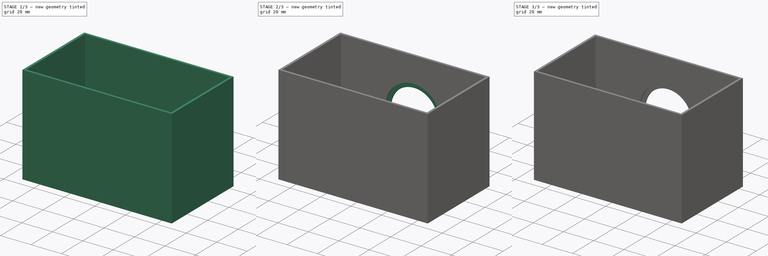
[diagram: build sequence overview — one tinted view per stage of 3, left to right]
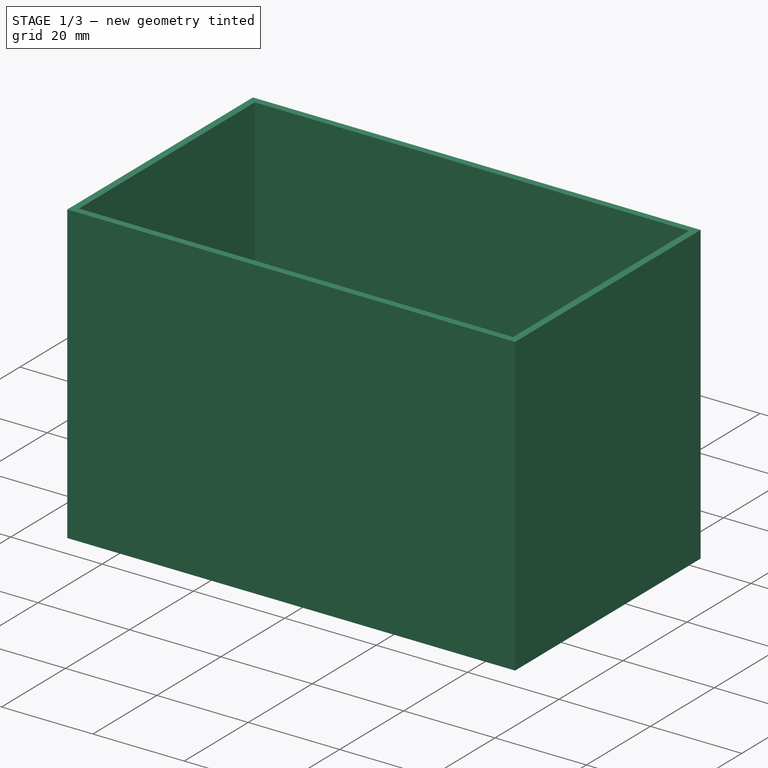
[diagram: stage 1 of 3 — iso view after this stage's code; geometry added in this stage tinted green]
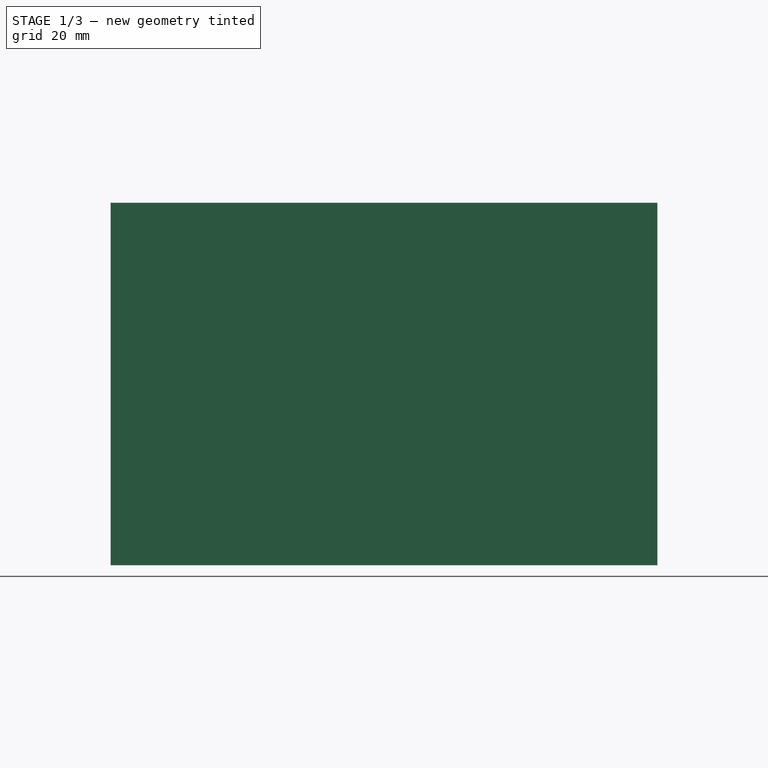
[diagram: stage 1 of 3 — front view after this stage's code; geometry added in this stage tinted green]
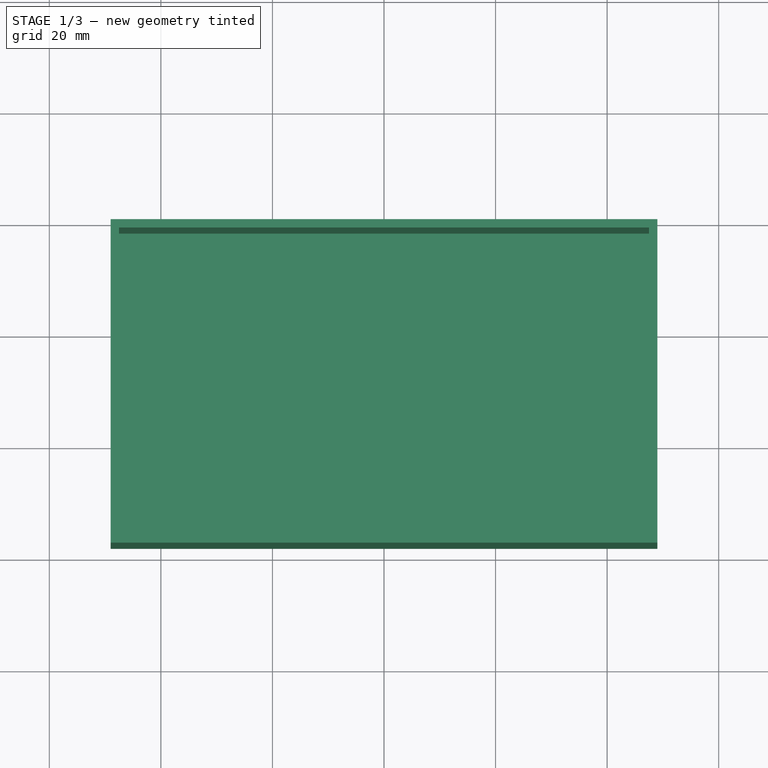
[diagram: stage 1 of 3 — top view after this stage's code; geometry added in this stage tinted green]
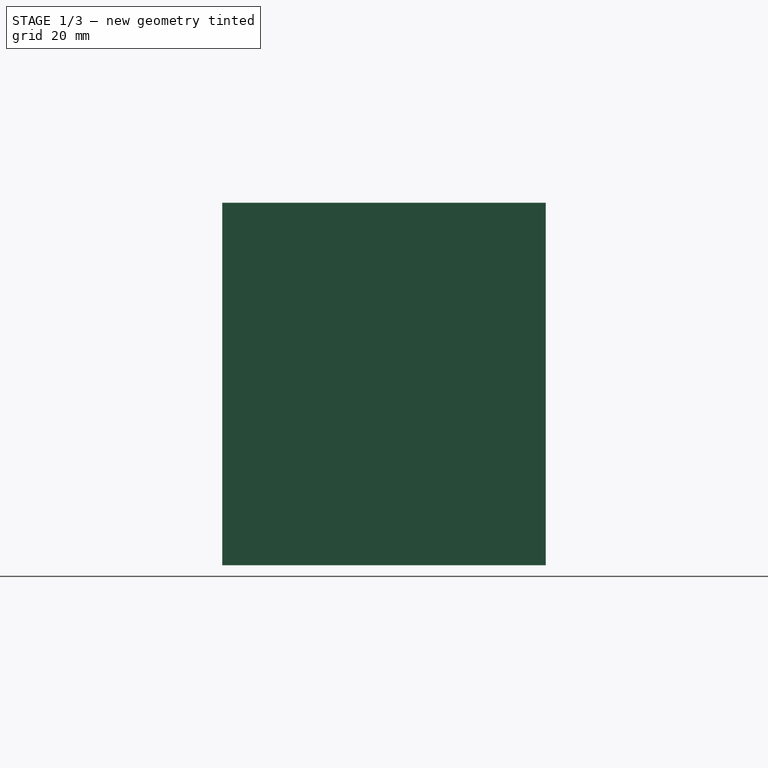
[diagram: stage 1 of 3 — right view after this stage's code; geometry added in this stage tinted green]
FCSTD DOCUMENT  (FreeCAD 0.21R33771 (Git))
Label: Camera_box
License: All rights reserved
LicenseURL: http://en.wikipedia.org/wiki/All_rights_reserved
objects: Sketcher::SketchObject×7, PartDesign::Pad×4, PartDesign::Pocket×3, PartDesign::Body×1
note: 22 computed .brp shape members not serialized (recipe doc carries the construction recipe); baked Part::Feature solids carry a one-line shape summary decoded from their .brp

FEATURE [Sketcher::SketchObject] Sketch
  FullyConstrained = true
  MapMode = 5
  Support = -> [XY_Plane]
  expr: Constraints[9] = .Constraints.Box_width * 0.5
  sketch-geometry (8):
    g0: LineSegment StartX=-49 StartY=0 StartZ=0 EndX=49 EndY=0 EndZ=0
    g1: LineSegment StartX=49 StartY=0 StartZ=0 EndX=49 EndY=-58 EndZ=0
    g2: LineSegment StartX=49 StartY=-58 StartZ=0 EndX=-49 EndY=-58 EndZ=0
    g3: LineSegment StartX=-49 StartY=-58 StartZ=0 EndX=-49 EndY=0 EndZ=0
    g4: LineSegment StartX=-47.5 StartY=-1.5 StartZ=0 EndX=47.5 EndY=-1.5 EndZ=0
    g5: LineSegment StartX=47.5 StartY=-1.5 StartZ=0 EndX=47.5 EndY=-56.5 EndZ=0
    g6: LineSegment StartX=47.5 StartY=-56.5 StartZ=0 EndX=-47.5 EndY=-56.5 EndZ=0
    g7: LineSegment StartX=-47.5 StartY=-56.5 StartZ=0 EndX=-47.5 EndY=-1.5 EndZ=0
  constraints (24):
    c: Coincident(g0,g1)
    c: Coincident(g1,g2)
    c: Coincident(g2,g3)
    c: Coincident(g3,g0)
    c: Horizontal(g0)
    c: Horizontal(g2)
    c: Vertical(g1)
    c: Vertical(g3)
    c: DistanceX(g0,g0) = 98  'Box_width'
    c: DistanceX(g0,g-1) = 49
    c: DistanceY(g0,g-1) = 0
    c: DistanceY(g3,g3) = 58
    c: Coincident(g4,g5)
    c: Coincident(g5,g6)
    c: Coincident(g6,g7)
    c: Coincident(g7,g4)
    c: Horizontal(g4)
    c: Horizontal(g6)
    c: Vertical(g5)
    c: Vertical(g7)
    c: DistanceY(g4,g0) = 1.5
    c: DistanceY(g2,g6) = 1.5
    c: DistanceX(g0,g4) = 1.5
    c: DistanceX(g4,g0) = 1.5
FEATURE [PartDesign::Pad] Pad  label="Box_outer_walls"
  Direction = (0,0,1)
  Length = 65
  Length2 = 10
  Profile = -> Sketch
  ReferenceAxis = -> Sketch [N_Axis]
  Type = 0
FEATURE [Sketcher::SketchObject] Sketch001
  FullyConstrained = true
  MapMode = 5
  Support = -> [XY_Plane]
  expr: Constraints[9] = .Constraints.Box_width * 0.5
  sketch-geometry (4):
    g0: LineSegment StartX=-49 StartY=0 StartZ=0 EndX=49 EndY=0 EndZ=0
    g1: LineSegment StartX=49 StartY=0 StartZ=0 EndX=49 EndY=-58 EndZ=0
    g2: LineSegment StartX=49 StartY=-58 StartZ=0 EndX=-49 EndY=-58 EndZ=0
    g3: LineSegment StartX=-49 StartY=-58 StartZ=0 EndX=-49 EndY=0 EndZ=0
  constraints (12):
    c: Coincident(g0,g1)
    c: Coincident(g1,g2)
    c: Coincident(g2,g3)
    c: Coincident(g3,g0)
    c: Horizontal(g0)
    c: Horizontal(g2)
    c: Vertical(g1)
    c: Vertical(g3)
    c: DistanceX(g0,g0) = 98  'Box_width'
    c: DistanceX(g0,g-1) = 49
    c: DistanceY(g-1,g0) = 0
    c: DistanceY(g3,g3) = 58
FEATURE [PartDesign::Pad] Pad001  label="Box_bottom"
  BaseFeature = -> Pad
  Direction = (0,0,1)
  Length = 1.5
  Length2 = 10
  Profile = -> Sketch001
  ReferenceAxis = -> Sketch001 [N_Axis]
  Type = 0
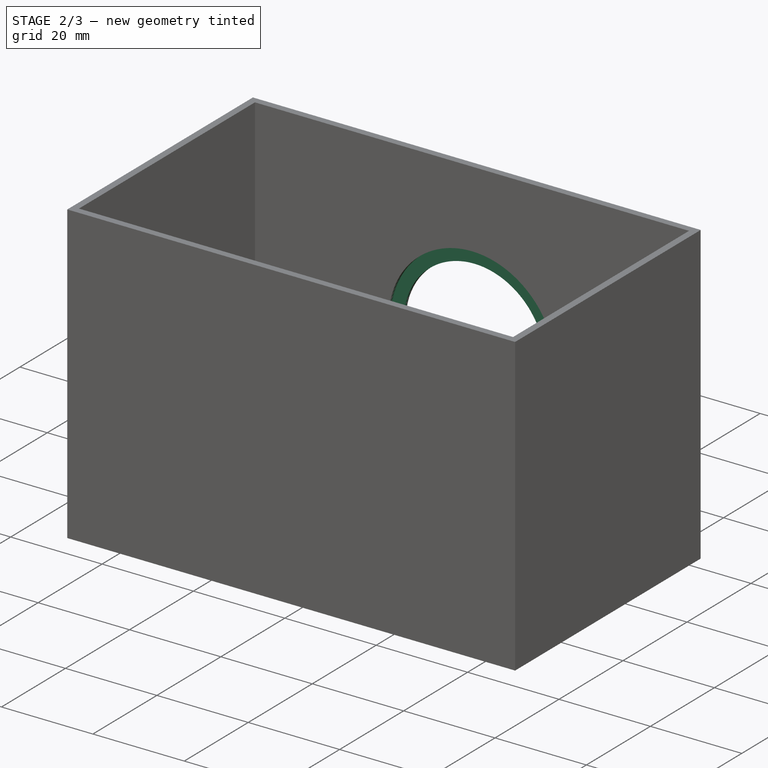
[diagram: stage 2 of 3 — iso view after this stage's code; geometry added in this stage tinted green]
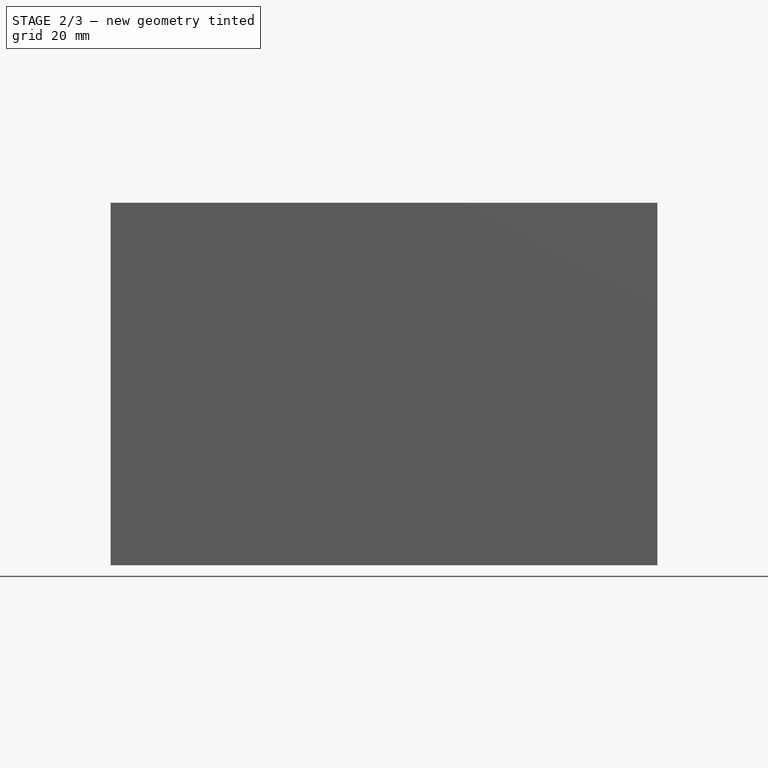
[diagram: stage 2 of 3 — front view after this stage's code; geometry added in this stage tinted green]
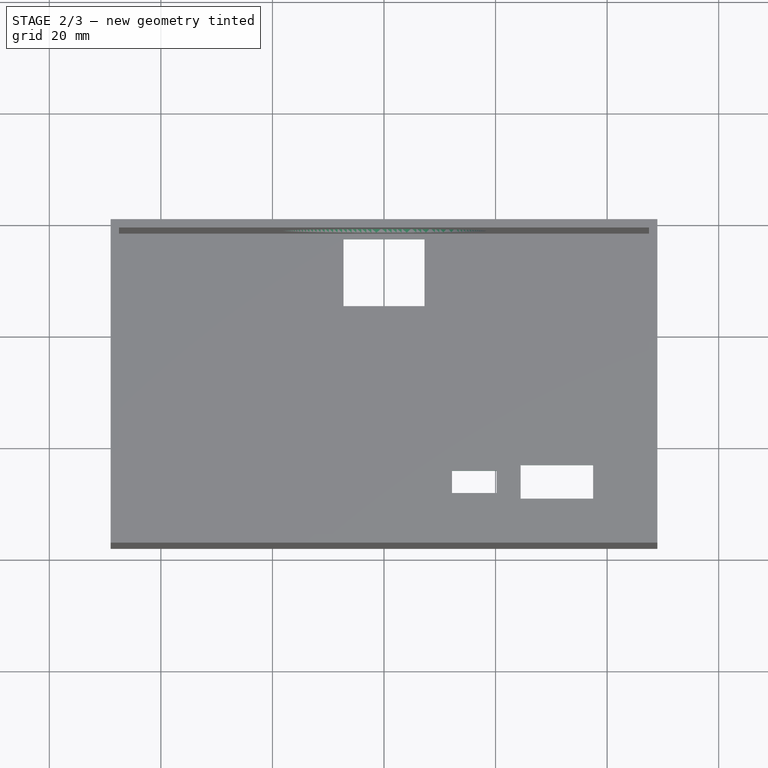
[diagram: stage 2 of 3 — top view after this stage's code; geometry added in this stage tinted green]
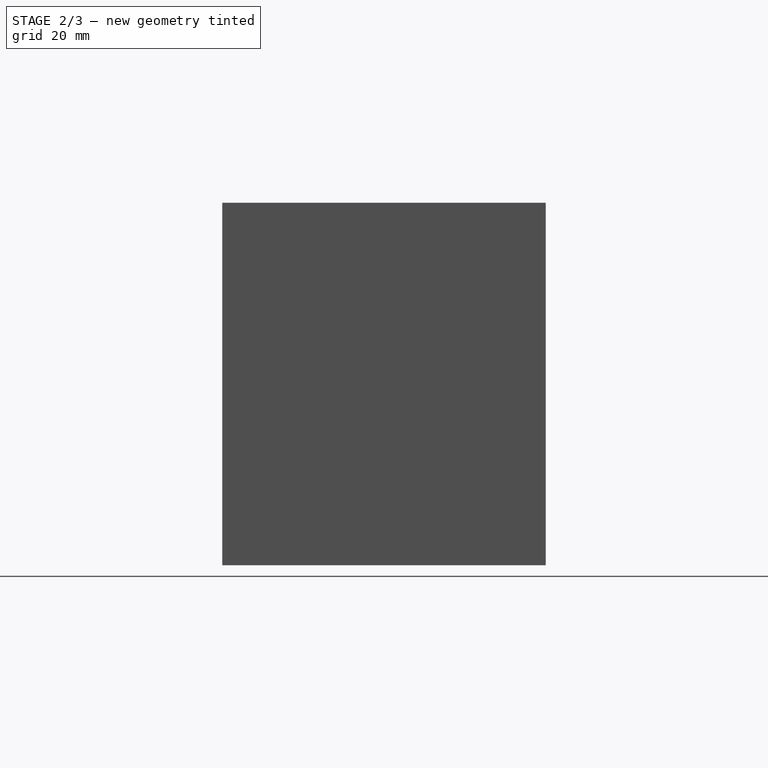
[diagram: stage 2 of 3 — right view after this stage's code; geometry added in this stage tinted green]
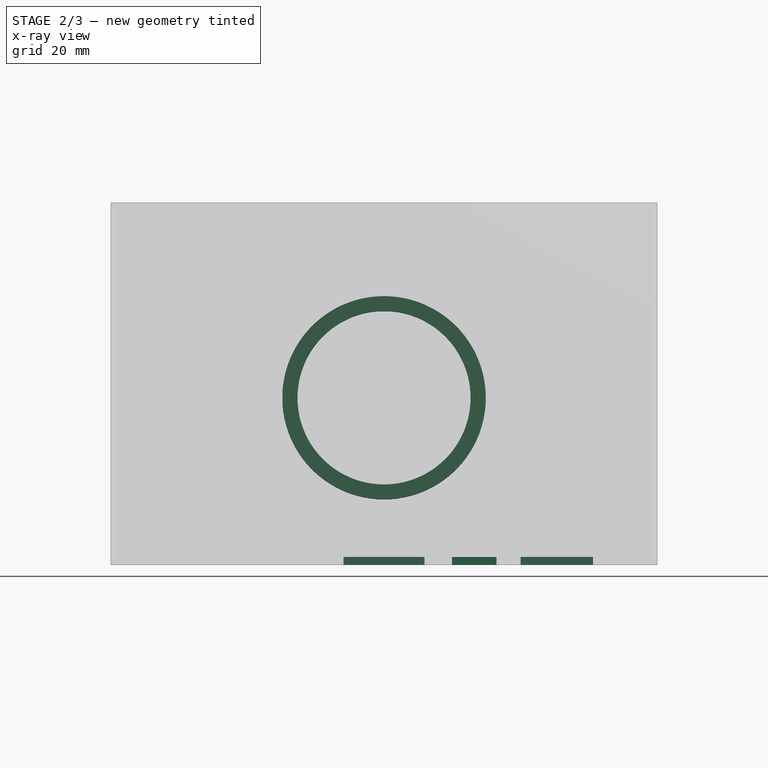
[diagram: stage 2 of 3 — x-ray composite at the front view; earlier geometry ghosted, this stage's added geometry solid]
FEATURE [Sketcher::SketchObject] Sketch002
  FullyConstrained = true
  MapMode = 5
  Placement = pos=(0,0,0) rot=(1,0,0;1.5708rad)
  Support = -> [XZ_Plane]
  sketch-geometry (1):
    g0: Circle CenterX=0 CenterY=30 CenterZ=0 NormalX=0 NormalY=0 NormalZ=1 AngleXU=0 Radius=15.5
  constraints (3):
    c: Diameter(g0) = 31
    c: DistanceX(g0,g-1) = 0
    c: DistanceY(g-1,g0) = 30
FEATURE [PartDesign::Pocket] Pocket  label="Lens_hole"
  BaseFeature = -> Pad001
  Direction = (0,1,2e-16)
  Length = 5
  Length2 = 5
  Profile = -> Sketch002
  ReferenceAxis = -> Sketch002 [N_Axis]
  Reversed = true
  Type = 0
FEATURE [Sketcher::SketchObject] Sketch003
  FullyConstrained = true
  MapMode = 5
  Support = -> [XY_Plane]
  expr: Constraints[10] = .Constraints.Mount_width * 0.5
  sketch-geometry (12):
    g0: LineSegment StartX=-7.25 StartY=-2.5 StartZ=0 EndX=7.25 EndY=-2.5 EndZ=0
    g1: LineSegment StartX=7.25 StartY=-2.5 StartZ=0 EndX=7.25 EndY=-14.5 EndZ=0
    g2: LineSegment StartX=7.25 StartY=-14.5 StartZ=0 EndX=-7.25 EndY=-14.5 EndZ=0
    g3: LineSegment StartX=-7.25 StartY=-14.5 StartZ=0 EndX=-7.25 EndY=-2.5 EndZ=0
    g4: LineSegment StartX=24.5 StartY=-43 StartZ=0 EndX=37.5 EndY=-43 EndZ=0
    g5: LineSegment StartX=37.5 StartY=-43 StartZ=0 EndX=37.5 EndY=-49 EndZ=0
    g6: LineSegment StartX=37.5 StartY=-49 StartZ=0 EndX=24.5 EndY=-49 EndZ=0
    g7: LineSegment StartX=24.5 StartY=-49 StartZ=0 EndX=24.5 EndY=-43 EndZ=0
    g8: LineSegment StartX=12.2 StartY=-44 StartZ=0 EndX=20.2 EndY=-44 EndZ=0
    g9: LineSegment StartX=20.2 StartY=-44 StartZ=0 EndX=20.2 EndY=-48 EndZ=0
    g10: LineSegment StartX=20.2 StartY=-48 StartZ=0 EndX=12.2 EndY=-48 EndZ=0
    g11: LineSegment StartX=12.2 StartY=-48 StartZ=0 EndX=12.2 EndY=-44 EndZ=0
  constraints (36):
    c: Coincident(g0,g1)
    c: Coincident(g1,g2)
    c: Coincident(g2,g3)
    c: Coincident(g3,g0)
    c: Horizontal(g0)
    c: Horizontal(g2)
    c: Vertical(g1)
    c: Vertical(g3)
    c: DistanceX(g0,g0) = 14.5  'Mount_width'
    c: DistanceY(g1,g1) = 12
    c: DistanceX(g0,g-1) = 7.25
    c: DistanceY(g0,g-1) = 2.5
    c: Coincident(g4,g5)
    c: Coincident(g5,g6)
    c: Coincident(g6,g7)
    c: Coincident(g7,g4)
    c: Horizontal(g4)
    c: Horizontal(g6)
    c: Vertical(g5)
    c: Vertical(g7)
    c: DistanceX(g4,g4) = 13
    c: DistanceY(g5,g5) = 6
    c: DistanceY(g6,g-1) = 49
    c: DistanceX(g-1,g4) = 37.5
    c: Coincident(g8,g9)
    c: Coincident(g9,g10)
    c: Coincident(g10,g11)
    c: Horizontal(g8)
    c: Horizontal(g10)
    c: Vertical(g9)
    c: Vertical(g11)
    c: DistanceY(g10,g-1) = 48
    c: DistanceX(g9,g6) = 4.3
    c: DistanceX(g10,g10) = 8
    c: Coincident(g8,g11)
    c: DistanceY(g11,g11) = 4
FEATURE [Sketcher::SketchObject] Sketch004
  FullyConstrained = true
  MapMode = 5
  Placement = pos=(0,-1.5,0) rot=(1,0,0;1.5708rad)
  sketch-geometry (1):
    g0: Circle CenterX=0 CenterY=30 CenterZ=0 NormalX=0 NormalY=0 NormalZ=1 AngleXU=0 Radius=18.25
  constraints (3):
    c: Diameter(g0) = 36.5
    c: DistanceY(g-1,g0) = 30
    c: DistanceX(g-1,g0) = 0
FEATURE [PartDesign::Pocket] Pocket002  label="House_lens_hole"
  BaseFeature = -> Pocket
  Direction = (0,1,-2e-16)
  Length = 0.75
  Length2 = 5
  Profile = -> Sketch004
  ReferenceAxis = -> Sketch004 [N_Axis]
  Type = 0
FEATURE [PartDesign::Pocket] Pocket003  label="Box_bottom_holes"
  BaseFeature = -> Pocket002
  Direction = (0,0,-1)
  Length = 5
  Length2 = 5
  Profile = -> Sketch003
  ReferenceAxis = -> Sketch003 [N_Axis]
  Reversed = true
  Type = 0
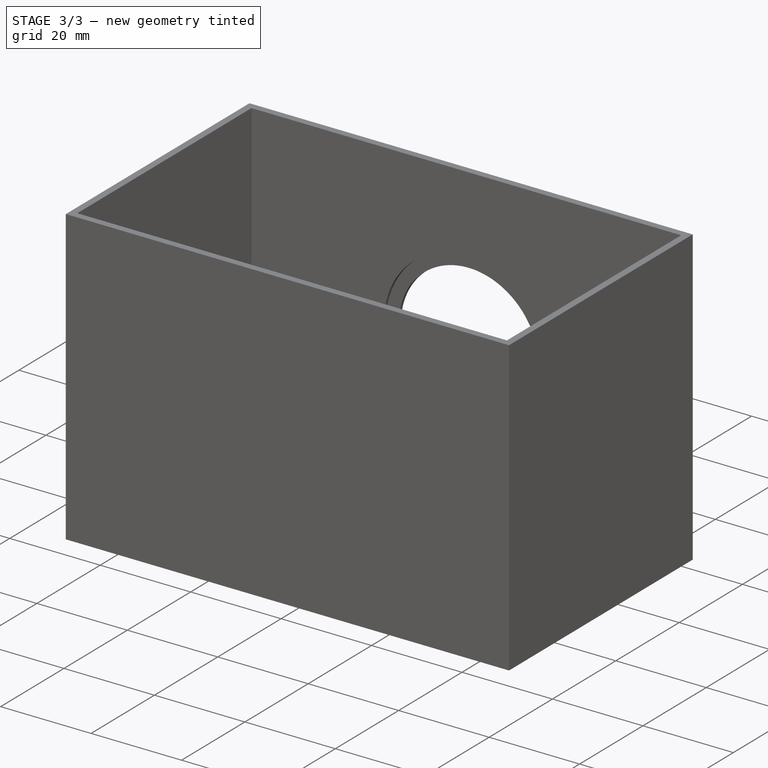
[diagram: stage 3 of 3 — iso view after this stage's code; geometry added in this stage tinted green]
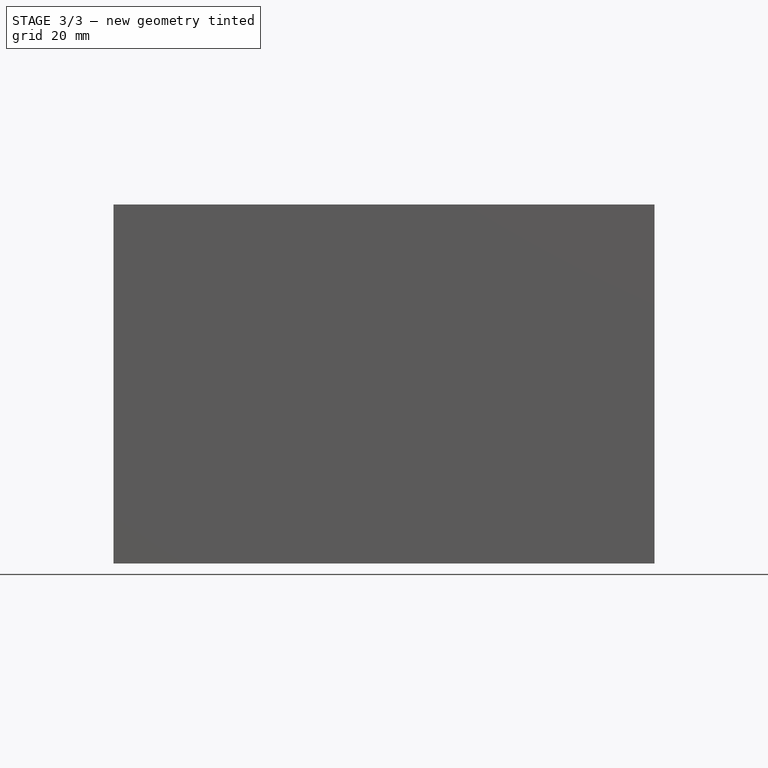
[diagram: stage 3 of 3 — front view after this stage's code; geometry added in this stage tinted green]
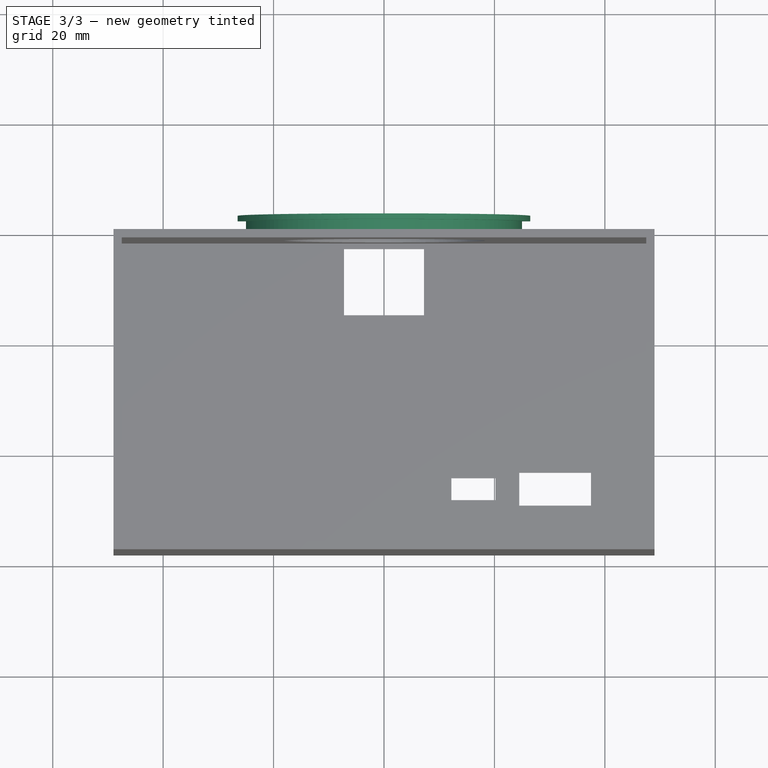
[diagram: stage 3 of 3 — top view after this stage's code; geometry added in this stage tinted green]
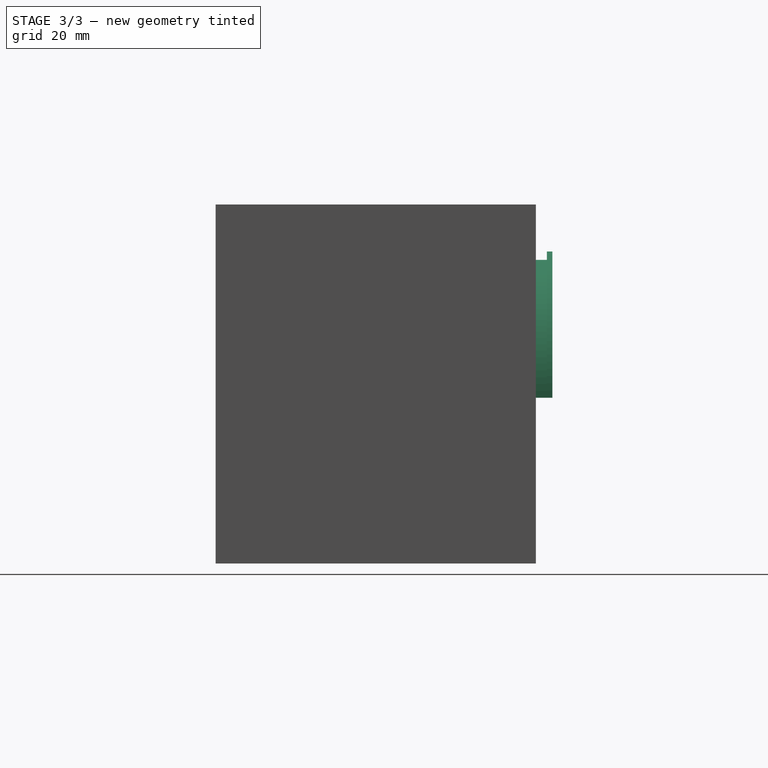
[diagram: stage 3 of 3 — right view after this stage's code; geometry added in this stage tinted green]
FEATURE [Sketcher::SketchObject] Sketch005
  FullyConstrained = true
  MapMode = 5
  Placement = pos=(0,0,0) rot=(1,0,0;1.5708rad)
  Support = -> [XZ_Plane]
  sketch-geometry (4):
    g0: ArcOfCircle CenterX=0 CenterY=30 CenterZ=0 NormalX=0 NormalY=0 NormalZ=1 AngleXU=0 Radius=23.5 StartAngle=0 EndAngle=3.14159
    g1: ArcOfCircle CenterX=0 CenterY=30 CenterZ=0 NormalX=0 NormalY=0 NormalZ=1 AngleXU=0 Radius=25 StartAngle=0 EndAngle=3.14159
    g2: LineSegment StartX=-25 StartY=30 StartZ=0 EndX=-23.5 EndY=30 EndZ=0
    g3: LineSegment StartX=23.5 StartY=30 StartZ=0 EndX=25 EndY=30 EndZ=0
  constraints (13):
    c: Radius(g0) = 23.5
    c: DistanceY(g-1,g0) = 30
    c: DistanceX(g0,g-1) = 0
    c: DistanceY(g1,g1) = 0
    c: Radius(g1) = 25
    c: Coincident(g1,g0)
    c: Coincident(g2,g1)
    c: Coincident(g2,g0)
    c: Horizontal(g2)
    c: Coincident(g3,g1)
    c: Coincident(g0,g3)
    c: Horizontal(g3)
    c: DistanceY(g0,g0) = 0
FEATURE [PartDesign::Pad] Pad002
  BaseFeature = -> Pocket003
  Direction = (0,-1,-2e-16)
  Length = 3
  Length2 = 10
  Profile = -> Sketch005
  ReferenceAxis = -> Sketch005 [N_Axis]
  Reversed = true
  Type = 0
FEATURE [Sketcher::SketchObject] Sketch006
  FullyConstrained = true
  MapMode = 5
  Placement = pos=(0,3,7e-16) rot=(0,0.707107,0.707107;3.14159rad)
  Support = -> [Pad002]
  sketch-geometry (4):
    g0: ArcOfCircle CenterX=0 CenterY=30 CenterZ=0 NormalX=0 NormalY=0 NormalZ=1 AngleXU=0 Radius=26.5 StartAngle=0 EndAngle=3.14159
    g1: ArcOfCircle CenterX=0 CenterY=30 CenterZ=0 NormalX=0 NormalY=0 NormalZ=1 AngleXU=0 Radius=23.5 StartAngle=0 EndAngle=3.14159
    g2: LineSegment StartX=-26.5 StartY=30 StartZ=0 EndX=-23.5 EndY=30 EndZ=0
    g3: LineSegment StartX=23.5 StartY=30 StartZ=0 EndX=26.5 EndY=30 EndZ=0
  constraints (13):
    c: Coincident(g1,g0)
    c: Coincident(g2,g0)
    c: Coincident(g2,g1)
    c: Coincident(g3,g1)
    c: Coincident(g3,g0)
    c: Horizontal(g3)
    c: Horizontal(g2)
    c: DistanceY(g1,g0) = 0
    c: DistanceY(g0,g1) = 0
    c: Radius(g1) = 23.5
    c: Radius(g0) = 26.5
    c: DistanceX(g0,g-1) = 0
    c: DistanceY(g-1,g0) = 30
FEATURE [PartDesign::Pad] Pad003
  BaseFeature = -> Pad002
  Direction = (0,1,2e-16)
  Length = 1
  Length2 = 10
  Profile = -> Sketch006
  ReferenceAxis = -> Sketch006 [N_Axis]
  Reversed = true
  Type = 0
FEATURE [PartDesign::Body] Body
  Group = -> [Sketch,Pad,Sketch001,Pad001,Sketch002,Pocket,Sketch003,Sketch004,Pocket002,Pocket003,Sketch005,Pad002,Sketch006,Pad003]
  Origin = -> Origin
  Tip = -> Pad003
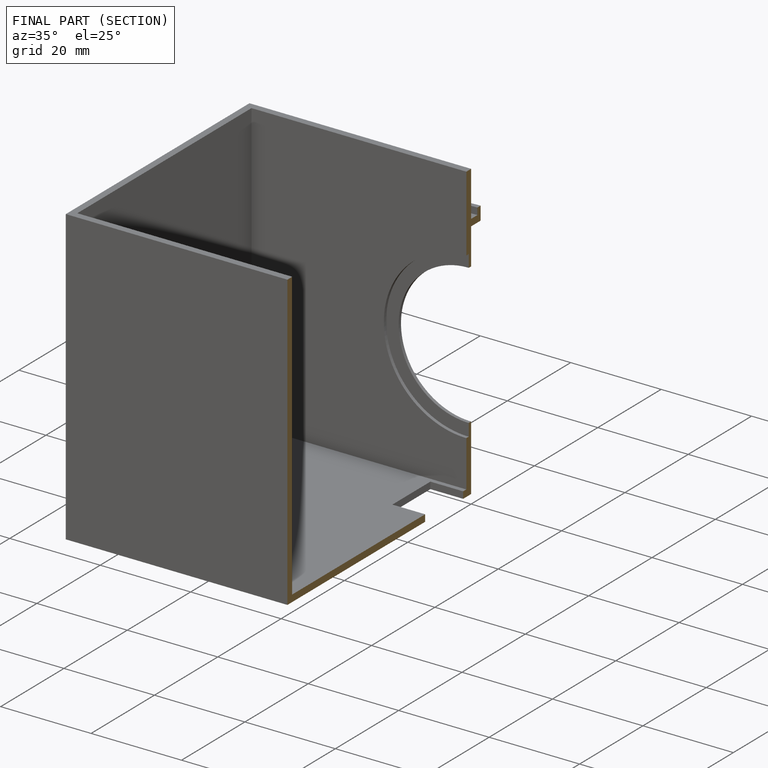
[diagram: finished part — half-section view (interior)]
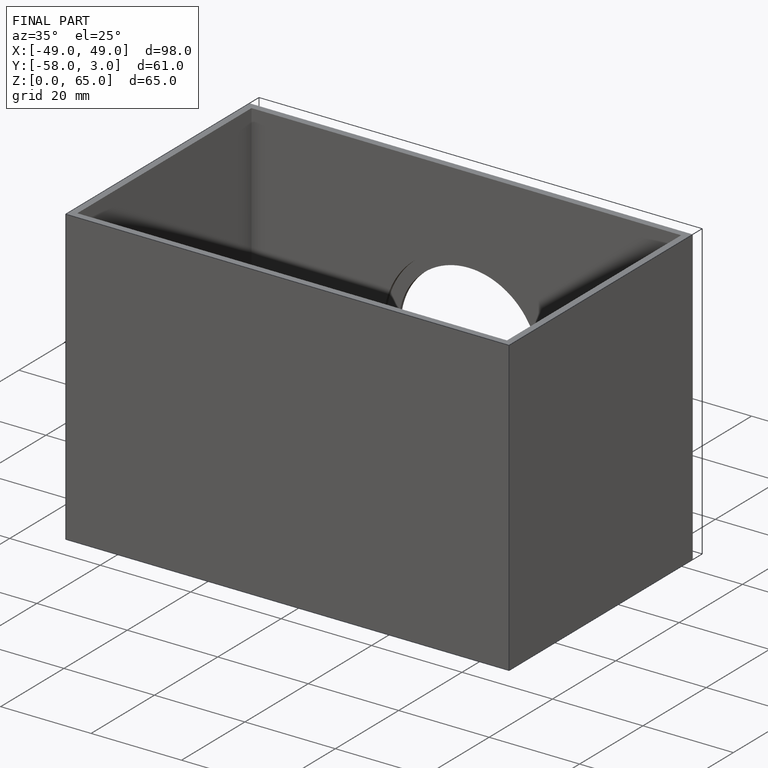
[diagram: finished part — iso view with bounding-box wireframe]
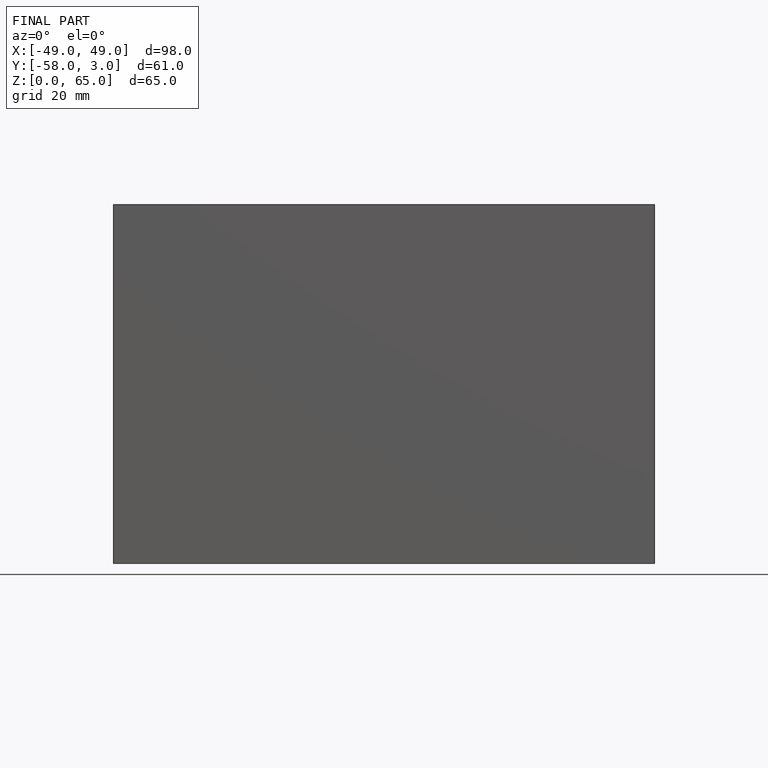
[diagram: finished part — front view with bounding-box wireframe]
